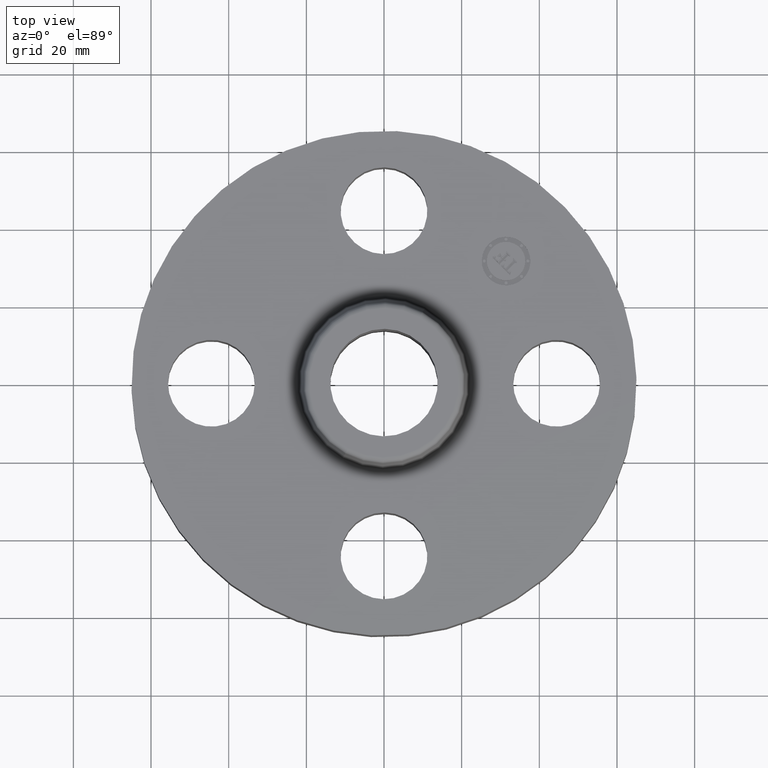
[diagram: clean part render]
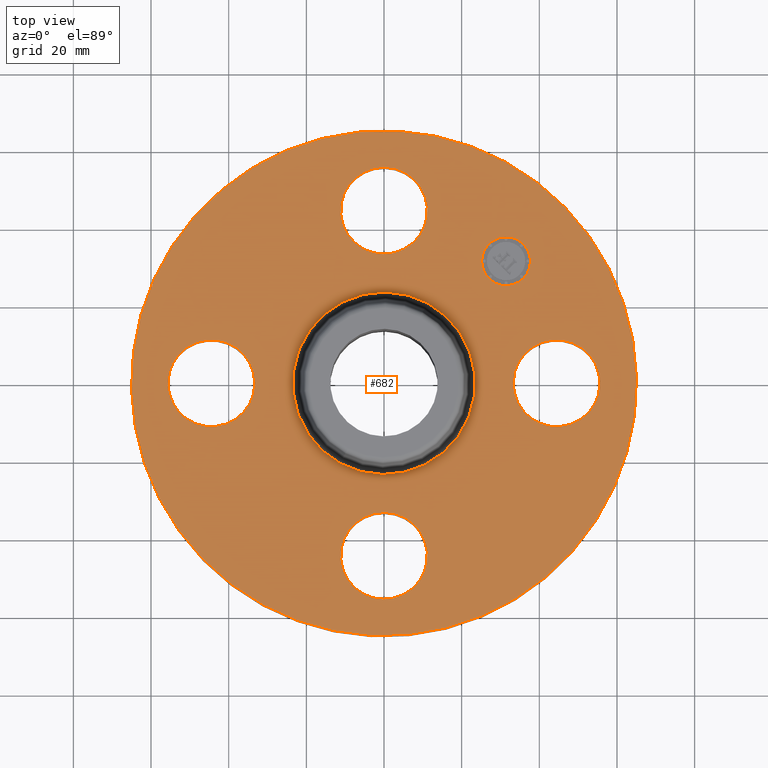
[diagram: same view with one face highlighted and labeled with its STEP entity id]
A machine part, top view. The second image highlights one B-rep face of the part: STEP entity #682.
In plain terms, the highlighted planar face has unit normal (0, 0, -1).
Its self-contained STEP definition (entity closure, byte-faithful):
#65=AXIS2_PLACEMENT_3D('Circle Axis2P3D',#63,#64,$) ;
#82=AXIS2_PLACEMENT_3D('Circle Axis2P3D',#80,#81,$) ;
#115=AXIS2_PLACEMENT_3D('Circle Axis2P3D',#113,#114,$) ;
#139=AXIS2_PLACEMENT_3D('Circle Axis2P3D',#137,#138,$) ;
#156=AXIS2_PLACEMENT_3D('Circle Axis2P3D',#154,#155,$) ;
#191=AXIS2_PLACEMENT_3D('Circle Axis2P3D',#189,#190,$) ;
#527=AXIS2_PLACEMENT_3D('Circle Axis2P3D',#525,#526,$) ;
#539=AXIS2_PLACEMENT_3D('Circle Axis2P3D',#537,#538,$) ;
#570=AXIS2_PLACEMENT_3D('Circle Axis2P3D',#568,#569,$) ;
#582=AXIS2_PLACEMENT_3D('Circle Axis2P3D',#580,#581,$) ;
#613=AXIS2_PLACEMENT_3D('Circle Axis2P3D',#611,#612,$) ;
#625=AXIS2_PLACEMENT_3D('Circle Axis2P3D',#623,#624,$) ;
#638=AXIS2_PLACEMENT_3D('Plane Axis2P3D',#635,#636,#637) ;
#666=AXIS2_PLACEMENT_3D('Circle Axis2P3D',#664,#665,$) ;
#675=AXIS2_PLACEMENT_3D('Circle Axis2P3D',#673,#674,$) ;
#46=CARTESIAN_POINT('Vertex',(1.36386367277,0.210947236987,1.)) ;
#60=CARTESIAN_POINT('Vertex',(2.13613632724,-0.210947236987,1.)) ;
#63=CARTESIAN_POINT('Axis2P3D Location',(1.75000000001,0.,1.)) ;
#80=CARTESIAN_POINT('Axis2P3D Location',(1.75000000001,0.,1.)) ;
#110=CARTESIAN_POINT('Vertex',(-1.22732937883,-2.24661135845,1.)) ;
#113=CARTESIAN_POINT('Axis2P3D Location',(0.,0.,1.)) ;
#117=CARTESIAN_POINT('Vertex',(1.22732937883,2.24661135845,1.)) ;
#137=CARTESIAN_POINT('Axis2P3D Location',(0.,0.,1.)) ;
#154=CARTESIAN_POINT('Axis2P3D Location',(0.,0.,1.)) ;
#158=CARTESIAN_POINT('Vertex',(0.443634493838,0.812067493898,1.)) ;
#160=CARTESIAN_POINT('Vertex',(-0.443634493838,-0.812067493898,1.)) ;
#189=CARTESIAN_POINT('Axis2P3D Location',(0.,0.,1.)) ;
#515=CARTESIAN_POINT('Vertex',(-0.210947236987,1.36386367277,1.)) ;
#522=CARTESIAN_POINT('Vertex',(0.210947236987,2.13613632724,1.)) ;
#525=CARTESIAN_POINT('Axis2P3D Location',(-3.21469784777E-016,1.75000000001,1.)) ;
#537=CARTESIAN_POINT('Axis2P3D Location',(-3.21469784777E-016,1.75000000001,1.)) ;
#558=CARTESIAN_POINT('Vertex',(-1.36386367277,-0.210947236987,1.)) ;
#565=CARTESIAN_POINT('Vertex',(-2.13613632724,0.210947236987,1.)) ;
#568=CARTESIAN_POINT('Axis2P3D Location',(-1.75000000001,-2.14313189852E-016,1.)) ;
#580=CARTESIAN_POINT('Axis2P3D Location',(-1.75000000001,-2.14313189852E-016,1.)) ;
#601=CARTESIAN_POINT('Vertex',(0.210947236987,-1.36386367277,1.)) ;
#608=CARTESIAN_POINT('Vertex',(-0.210947236987,-2.13613632724,1.)) ;
#611=CARTESIAN_POINT('Axis2P3D Location',(1.07156594926E-016,-1.75000000001,1.)) ;
#623=CARTESIAN_POINT('Axis2P3D Location',(1.07156594926E-016,-1.75000000001,1.)) ;
#635=CARTESIAN_POINT('Axis2P3D Location',(0.,2.56000000001,1.)) ;
#664=CARTESIAN_POINT('Axis2P3D Location',(1.23743686708,1.23743686708,1.)) ;
#668=CARTESIAN_POINT('Vertex',(1.06242793874,1.41244579543,1.)) ;
#670=CARTESIAN_POINT('Vertex',(1.41244579543,1.06242793874,1.)) ;
#673=CARTESIAN_POINT('Axis2P3D Location',(1.23743686708,1.23743686708,1.)) ;
#64=DIRECTION('Axis2P3D Direction',(0.,-0.,-0.0393700787402)) ;
#81=DIRECTION('Axis2P3D Direction',(0.,-0.,-0.0393700787402)) ;
#114=DIRECTION('Axis2P3D Direction',(0.,0.,-0.0393700787402)) ;
#138=DIRECTION('Axis2P3D Direction',(0.,0.,-0.0393700787402)) ;
#155=DIRECTION('Axis2P3D Direction',(0.,0.,-0.0393700787402)) ;
#190=DIRECTION('Axis2P3D Direction',(0.,0.,-0.0393700787402)) ;
#526=DIRECTION('Axis2P3D Direction',(0.,0.,-0.0393700787402)) ;
#538=DIRECTION('Axis2P3D Direction',(0.,0.,-0.0393700787402)) ;
#569=DIRECTION('Axis2P3D Direction',(-0.,0.,-0.0393700787402)) ;
#581=DIRECTION('Axis2P3D Direction',(-0.,0.,-0.0393700787402)) ;
#612=DIRECTION('Axis2P3D Direction',(0.,-0.,-0.0393700787402)) ;
#624=DIRECTION('Axis2P3D Direction',(0.,-0.,-0.0393700787402)) ;
#636=DIRECTION('Axis2P3D Direction',(0.,0.,-0.0393700787402)) ;
#637=DIRECTION('Axis2P3D XDirection',(0.0393700787402,0.,0.)) ;
#665=DIRECTION('Axis2P3D Direction',(0.,0.,-0.0393700787402)) ;
#674=DIRECTION('Axis2P3D Direction',(0.,0.,-0.0393700787402)) ;
#641=ORIENTED_EDGE('',*,*,#141,.F.) ;
#642=ORIENTED_EDGE('',*,*,#119,.F.) ;
#645=ORIENTED_EDGE('',*,*,#67,.T.) ;
#646=ORIENTED_EDGE('',*,*,#84,.T.) ;
#649=ORIENTED_EDGE('',*,*,#193,.T.) ;
#650=ORIENTED_EDGE('',*,*,#162,.T.) ;
#653=ORIENTED_EDGE('',*,*,#627,.T.) ;
#654=ORIENTED_EDGE('',*,*,#615,.T.) ;
#657=ORIENTED_EDGE('',*,*,#584,.T.) ;
#658=ORIENTED_EDGE('',*,*,#572,.T.) ;
#661=ORIENTED_EDGE('',*,*,#541,.T.) ;
#662=ORIENTED_EDGE('',*,*,#529,.T.) ;
#679=ORIENTED_EDGE('',*,*,#672,.T.) ;
#680=ORIENTED_EDGE('',*,*,#677,.T.) ;
#647=FACE_BOUND('',#644,.T.) ;
#651=FACE_BOUND('',#648,.T.) ;
#655=FACE_BOUND('',#652,.T.) ;
#659=FACE_BOUND('',#656,.T.) ;
#663=FACE_BOUND('',#660,.T.) ;
#681=FACE_BOUND('',#678,.T.) ;
#682=ADVANCED_FACE('PartBody',(#643,#647,#651,#655,#659,#663,#681),#639,.F.) ;
#66=CIRCLE('generated circle',#65,0.440000000002) ;
#83=CIRCLE('generated circle',#82,0.440000000002) ;
#116=CIRCLE('generated circle',#115,2.56000000001) ;
#140=CIRCLE('generated circle',#139,2.56000000001) ;
#157=CIRCLE('generated circle',#156,0.925345977874) ;
#192=CIRCLE('generated circle',#191,0.925345977874) ;
#528=CIRCLE('generated circle',#527,0.440000000002) ;
#540=CIRCLE('generated circle',#539,0.440000000002) ;
#571=CIRCLE('generated circle',#570,0.440000000002) ;
#583=CIRCLE('generated circle',#582,0.440000000002) ;
#614=CIRCLE('generated circle',#613,0.440000000002) ;
#626=CIRCLE('generated circle',#625,0.440000000002) ;
#667=CIRCLE('generated circle',#666,0.247500000001) ;
#676=CIRCLE('generated circle',#675,0.247500000001) ;
#67=EDGE_CURVE('',#47,#61,#66,.T.) ;
#84=EDGE_CURVE('',#61,#47,#83,.T.) ;
#119=EDGE_CURVE('',#111,#118,#116,.T.) ;
#141=EDGE_CURVE('',#118,#111,#140,.T.) ;
#162=EDGE_CURVE('',#159,#161,#157,.T.) ;
#193=EDGE_CURVE('',#161,#159,#192,.T.) ;
#529=EDGE_CURVE('',#516,#523,#528,.T.) ;
#541=EDGE_CURVE('',#523,#516,#540,.T.) ;
#572=EDGE_CURVE('',#559,#566,#571,.T.) ;
#584=EDGE_CURVE('',#566,#559,#583,.T.) ;
#615=EDGE_CURVE('',#602,#609,#614,.T.) ;
#627=EDGE_CURVE('',#609,#602,#626,.T.) ;
#672=EDGE_CURVE('',#669,#671,#667,.T.) ;
#677=EDGE_CURVE('',#671,#669,#676,.T.) ;
#640=EDGE_LOOP('',(#641,#642)) ;
#644=EDGE_LOOP('',(#645,#646)) ;
#648=EDGE_LOOP('',(#649,#650)) ;
#652=EDGE_LOOP('',(#653,#654)) ;
#656=EDGE_LOOP('',(#657,#658)) ;
#660=EDGE_LOOP('',(#661,#662)) ;
#678=EDGE_LOOP('',(#679,#680)) ;
#643=FACE_OUTER_BOUND('',#640,.T.) ;
#639=PLANE('',#638) ;
#47=VERTEX_POINT('',#46) ;
#61=VERTEX_POINT('',#60) ;
#111=VERTEX_POINT('',#110) ;
#118=VERTEX_POINT('',#117) ;
#159=VERTEX_POINT('',#158) ;
#161=VERTEX_POINT('',#160) ;
#516=VERTEX_POINT('',#515) ;
#523=VERTEX_POINT('',#522) ;
#559=VERTEX_POINT('',#558) ;
#566=VERTEX_POINT('',#565) ;
#602=VERTEX_POINT('',#601) ;
#609=VERTEX_POINT('',#608) ;
#669=VERTEX_POINT('',#668) ;
#671=VERTEX_POINT('',#670) ;